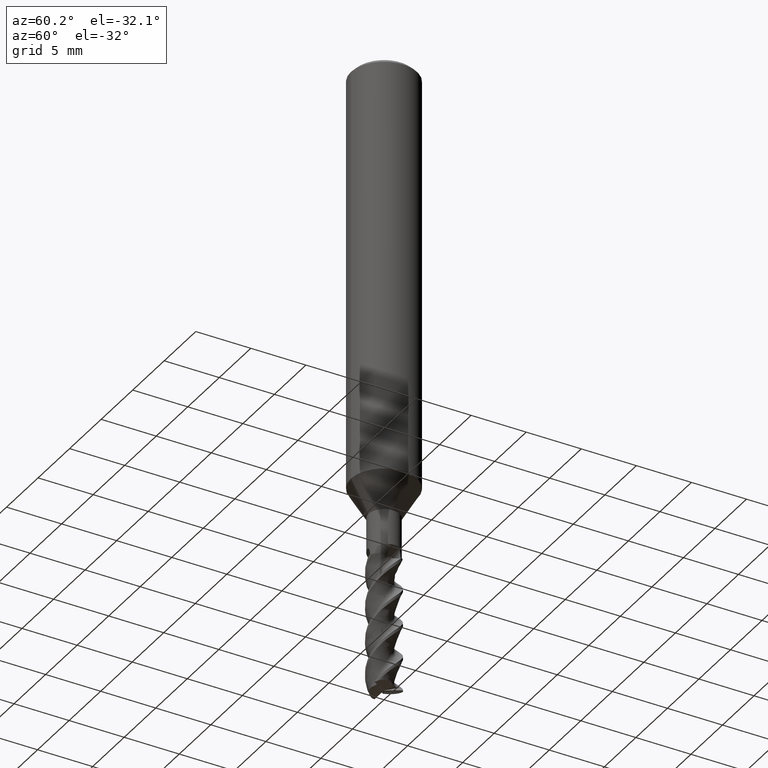
[diagram: clean part render]
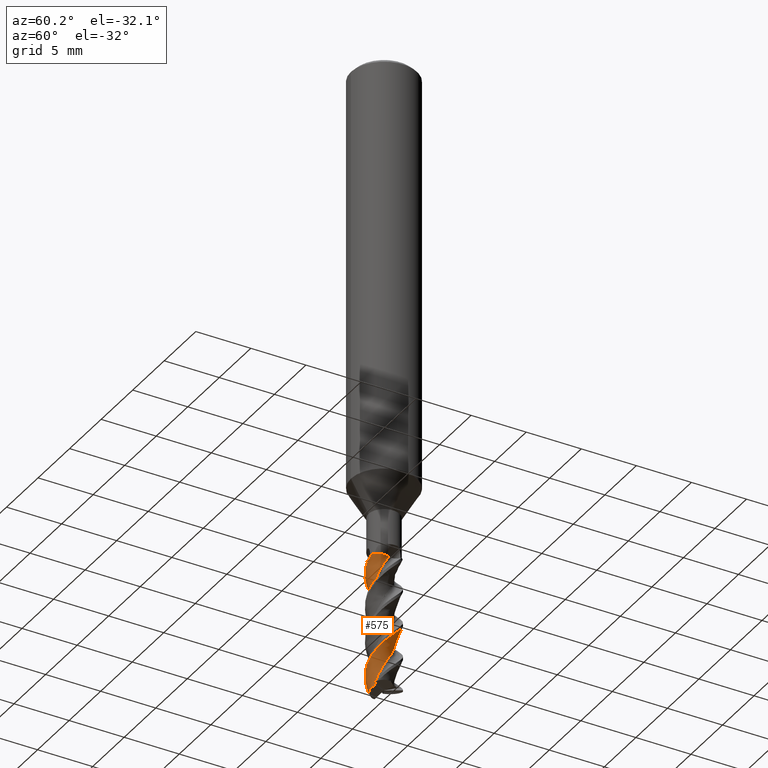
[diagram: same view with one face highlighted and labeled with its STEP entity id]
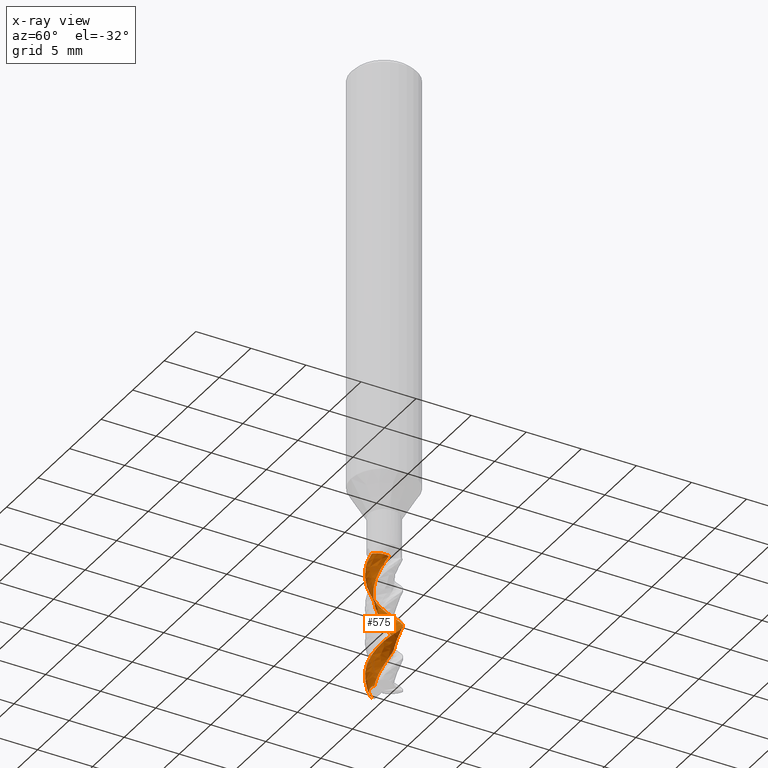
[diagram: x-ray of the same camera — body ghosted, the highlighted face saturated]
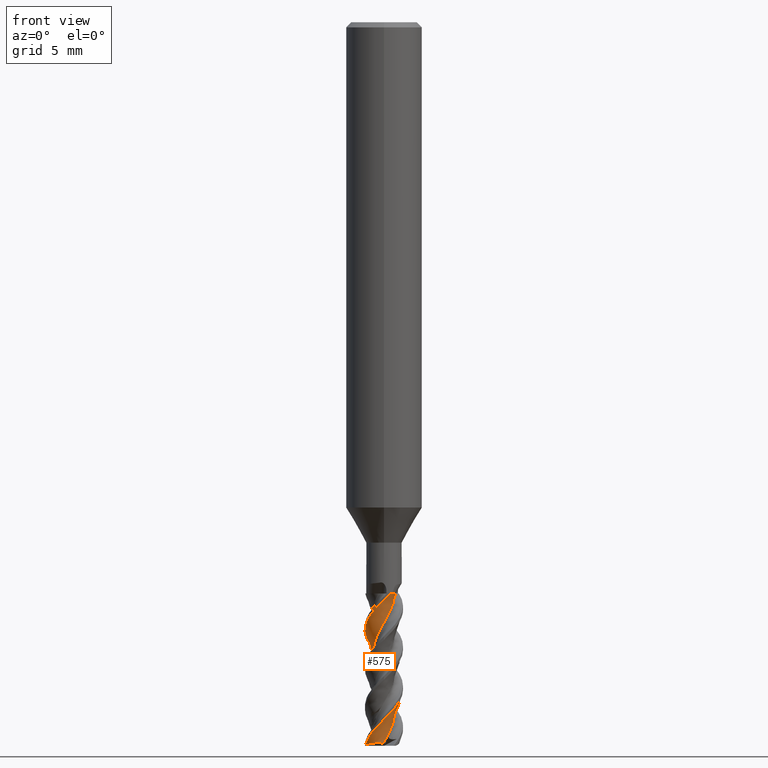
[diagram: same view with one face highlighted and labeled with its STEP entity id]
A machine part, auxiliary view. The second image highlights one B-rep face of the part: STEP entity #575.
The next image is the same camera in x-ray: the body ghosted, the highlighted face saturated — about 0% of this face is hidden behind the body in this view.
A second angle (front view) of the same face is appended — the face is thin or edge-on in the first view.
In plain terms, the highlighted face is a freeform B-spline surface patch.
Its self-contained STEP definition (entity closure, byte-faithful):
#465=EDGE_CURVE('',#909,#865,#1311,.T.);
#523=VERTEX_POINT('',#1371);
#555=EDGE_CURVE('',#523,#909,#1405,.T.);
#575=ADVANCED_FACE('',(#1428),#1429,.T.);
#857=EDGE_CURVE('',#1103,#931,#1743,.T.);
#865=VERTEX_POINT('',#1752);
#873=EDGE_CURVE('',#915,#1103,#1760,.T.);
#885=EDGE_CURVE('',#1005,#1131,#1772,.T.);
#909=VERTEX_POINT('',#1797);
#915=VERTEX_POINT('',#1803);
#931=VERTEX_POINT('',#1820);
#1005=VERTEX_POINT('',#1906);
#1007=EDGE_CURVE('',#1131,#915,#1908,.T.);
#1069=EDGE_CURVE('',#865,#1005,#1974,.T.);
#1103=VERTEX_POINT('',#2013);
#1107=EDGE_CURVE('',#931,#523,#2017,.T.);
#1131=VERTEX_POINT('',#2041);
#1311=B_SPLINE_CURVE_WITH_KNOTS('',3,(#2281,#2282,#2283,#2284,#2285,#2286,#2287,#2288,#2289,#2290),.UNSPECIFIED.,.F.,.F.,(4,2,2,2,4),(0.0,0.48447848214573,0.968928230784294,1.33648612621128,1.70403410038403),.UNSPECIFIED.);
#1371=CARTESIAN_POINT('',(1.01702827928173E-015,-1.49990416364098,-45.4996369174987));
#1405=B_SPLINE_CURVE_WITH_KNOTS('',3,(#2764,#2765,#2766,#2767,#2768,#2769,#2770,#2771,#2772,#2773,#2774,#2775,#2776,#2777,#2778,#2779,#2780,#2781,#2782,#2783,#2784,#2785,#2786,#2787,#2788,#2789,#2790,#2791,#2792,#2793,#2794,#2795,#2796,#2797,#2798,#2799,#2800,#2801,#2802,#2803,#2804,#2805,#2806,#2807,#2808,#2809,#2810,#2811,#2812,#2813,#2814,#2815,#2816,#2817),.UNSPECIFIED.,.F.,.F.,(4,2,2,2,2,2,2,2,2,2,2,2,2,2,2,2,2,2,2,2,2,2,2,2,2,2,4),(0.0,0.335786071669688,0.90022083376192,2.00729263478944,2.30663199296024,2.49481213804953,2.59872621261357,2.77703610799303,2.88371848948536,2.93616983695043,3.00777645414699,3.0401180903144,3.06614237603094,3.11100841933135,3.12916524271368,3.13912020771624,3.14875504487455,3.15529163063396,3.16835584755242,3.17427486532408,3.17751713657463,3.18079337399987,3.18691030537439,3.19009052128507,3.19225516217203,3.19604536988981,3.19929230834819),.UNSPECIFIED.);
#1428=FACE_OUTER_BOUND('',#3150,.T.);
#1429=B_SPLINE_SURFACE_WITH_KNOTS('',3,3,((#3151,#3152,#3153,#3154,#3155,#3156,#3157,#3158,#3159,#3160,#3161,#3162,#3163,#3164,#3165,#3166,#3167,#3168,#3169,#3170,#3171,#3172,#3173,#3174,#3175,#3176,#3177,#3178,#3179,#3180,#3181,#3182,#3183,#3184,#3185,#3186,#3187,#3188,#3189,#3190,#3191,#3192,#3193,#3194,#3195,#3196,#3197,#3198,#3199,#3200,#3201,#3202,#3203,#3204,#3205,#3206,#3207,#3208,#3209,#3210,#3211,#3212,#3213,#3214,#3215,#3216,#3217),(#3218,#3219,#3220,#3221,#3222,#3223,#3224,#3225,#3226,#3227,#3228,#3229,#3230,#3231,#3232,#3233,#3234,#3235,#3236,#3237,#3238,#3239,#3240,#3241,#3242,#3243,#3244,#3245,#3246,#3247,#3248,#3249,#3250,#3251,#3252,#3253,#3254,#3255,#3256,#3257,#3258,#3259,#3260,#3261,#3262,#3263,#3264,#3265,#3266,#3267,#3268,#3269,#3270,#3271,#3272,#3273,#3274,#3275,#3276,#3277,#3278,#3279,#3280,#3281,#3282,#3283,#3284),(#3285,#3286,#3287,#3288,#3289,#3290,#3291,#3292,#3293,#3294,#3295,#3296,#3297,#3298,#3299,#3300,#3301,#3302,#3303,#3304,#3305,#3306,#3307,#3308,#3309,#3310,#3311,#3312,#3313,#3314,#3315,#3316,#3317,#3318,#3319,#3320,#3321,#3322,#3323,#3324,#3325,#3326,#3327,#3328,#3329,#3330,#3331,#3332,#3333,#3334,#3335,#3336,#3337,#3338,#3339,#3340,#3341,#3342,#3343,#3344,#3345,#3346,#3347,#3348,#3349,#3350,#3351),(#3352,#3353,#3354,#3355,#3356,#3357,#3358,#3359,#3360,#3361,#3362,#3363,#3364,#3365,#3366,#3367,#3368,#3369,#3370,#3371,#3372,#3373,#3374,#3375,#3376,#3377,#3378,#3379,#3380,#3381,#3382,#3383,#3384,#3385,#3386,#3387,#3388,#3389,#3390,#3391,#3392,#3393,#3394,#3395,#3396,#3397,#3398,#3399,#3400,#3401,#3402,#3403,#3404,#3405,#3406,#3407,#3408,#3409,#3410,#3411,#3412,#3413,#3414,#3415,#3416,#3417,#3418),(#3419,#3420,#3421,#3422,#3423,#3424,#3425,#3426,#3427,#3428,#3429,#3430,#3431,#3432,#3433,#3434,#3435,#3436,#3437,#3438,#3439,#3440,#3441,#3442,#3443,#3444,#3445,#3446,#3447,#3448,#3449,#3450,#3451,#3452,#3453,#3454,#3455,#3456,#3457,#3458,#3459,#3460,#3461,#3462,#3463,#3464,#3465,#3466,#3467,#3468,#3469,#3470,#3471,#3472,#3473,#3474,#3475,#3476,#3477,#3478,#3479,#3480,#3481,#3482,#3483,#3484,#3485),(#3486,#3487,#3488,#3489,#3490,#3491,#3492,#3493,#3494,#3495,#3496,#3497,#3498,#3499,#3500,#3501,#3502,#3503,#3504,#3505,#3506,#3507,#3508,#3509,#3510,#3511,#3512,#3513,#3514,#3515,#3516,#3517,#3518,#3519,#3520,#3521,#3522,#3523,#3524,#3525,#3526,#3527,#3528,#3529,#3530,#3531,#3532,#3533,#3534,#3535,#3536,#3537,#3538,#3539,#3540,#3541,#3542,#3543,#3544,#3545,#3546,#3547,#3548,#3549,#3550,#3551,#3552)),.UNSPECIFIED.,.F.,.F.,.F.,(4,1,1,4),(4,1,2,1,2,1,2,1,1,2,2,2,2,2,2,2,2,2,2,2,2,2,2,2,2,2,2,2,2,2,2,2,1,1,2,2,4),(-1.37901021707789,-0.861881385673684,-0.344752554269474,0.0),(0.0,0.28264834390618,0.565296687812361,0.847945031718541,1.13059337562472,1.69589006343708,2.26118675124944,2.68515926710871,3.10913178296798,3.39178012687416,3.95707681468652,4.52237350249889,5.08767019031125,5.65296687812361,6.21826356593597,6.78356025374833,7.34885694156069,7.91415362937305,8.47945031718541,9.04474700499777,9.61004369281013,10.1753403806225,10.7406370684349,11.3059337562472,11.8712304440596,12.4365271318719,13.0018238196843,13.5671205074967,14.132417195309,14.6977138831214,15.2630105709337,15.8283072587461,16.1109556026523,16.5349281185115,16.9589006343708,17.5241973221832,18.0894940099955),.UNSPECIFIED.);
#1743=B_SPLINE_CURVE_WITH_KNOTS('',3,(#5737,#5738,#5739,#5740,#5741,#5742,#5743,#5744,#5745,#5746,#5747,#5748,#5749,#5750,#5751,#5752,#5753,#5754,#5755,#5756,#5757,#5758,#5759,#5760,#5761,#5762,#5763,#5764,#5765,#5766,#5767,#5768,#5769,#5770,#5771,#5772,#5773,#5774,#5775,#5776,#5777,#5778,#5779,#5780,#5781,#5782,#5783,#5784,#5785,#5786,#5787,#5788,#5789,#5790),.UNSPECIFIED.,.F.,.F.,(4,2,2,2,2,2,2,2,2,2,2,2,2,2,2,2,2,2,2,2,2,2,2,2,2,2,4),(0.0,0.335786071669688,0.90022083376192,2.00729263478944,2.30663199296024,2.49481213804953,2.59872621261357,2.77703610799303,2.88371848948536,2.93616983695043,3.00777645414699,3.0401180903144,3.06614237603094,3.11100841933135,3.12916524271368,3.13912020771624,3.14875504487455,3.15529163063396,3.16835584755242,3.17427486532408,3.17751713657463,3.18079337399987,3.18691030537439,3.19009052128507,3.19225516217203,3.19604536988981,3.19929230834819),.UNSPECIFIED.);
#1752=CARTESIAN_POINT('',(0.876327925445349,-0.121275977740521,-45.0));
#1760=B_SPLINE_CURVE_WITH_KNOTS('',3,(#5809,#5810,#5811,#5812,#5813,#5814,#5815,#5816,#5817,#5818,#5819,#5820,#5821,#5822,#5823,#5824,#5825,#5826,#5827,#5828,#5829,#5830,#5831,#5832,#5833,#5834,#5835,#5836,#5837,#5838,#5839,#5840,#5841,#5842,#5843,#5844,#5845,#5846,#5847,#5848,#5849,#5850,#5851,#5852,#5853,#5854,#5855,#5856,#5857,#5858,#5859,#5860,#5861,#5862),.UNSPECIFIED.,.F.,.F.,(4,2,2,2,2,2,2,2,2,2,2,2,2,2,2,2,2,2,2,2,2,2,2,2,2,2,4),(0.0,0.335786071669688,0.90022083376192,2.00729263478944,2.30663199296024,2.49481213804953,2.59872621261357,2.77703610799303,2.88371848948536,2.93616983695043,3.00777645414699,3.0401180903144,3.06614237603094,3.11100841933135,3.12916524271368,3.13912020771624,3.14875504487455,3.15529163063396,3.16835584755242,3.17427486532408,3.17751713657463,3.18079337399987,3.18691030537439,3.19009052128507,3.19225516217203,3.19604536988981,3.19929230834819),.UNSPECIFIED.);
#1772=B_SPLINE_CURVE_WITH_KNOTS('',3,(#5907,#5908,#5909,#5910,#5911,#5912,#5913,#5914,#5915,#5916,#5917,#5918,#5919,#5920,#5921,#5922,#5923,#5924,#5925,#5926,#5927,#5928,#5929,#5930,#5931,#5932,#5933,#5934,#5935,#5936,#5937,#5938,#5939,#5940,#5941,#5942,#5943,#5944,#5945,#5946,#5947,#5948,#5949,#5950,#5951,#5952,#5953,#5954,#5955,#5956,#5957,#5958,#5959,#5960,#5961,#5962,#5963,#5964),.UNSPECIFIED.,.F.,.F.,(4,2,2,2,2,2,2,2,2,2,2,2,2,2,2,2,2,2,2,2,2,2,2,2,2,2,2,2,4),(-254.021550951745,-246.46416756569,-236.895822079088,-211.637971657684,-177.961105259405,-154.169309113102,-132.985016083723,-116.871851732927,-102.351756280444,-94.3970025981933,-88.3324134140824,-75.1866241342562,-67.0084300719409,-60.5333456091331,-47.8388302619009,-39.4370547420788,-32.0069317094988,-27.3700578725343,-24.0140900473236,-17.5687177239578,-13.5823745245318,-10.0990570406017,-7.47173482627572,-5.10388346754107,-3.63410079716518,-2.73538793047097,-1.02532382262125,-0.235444407227589,-0.0),.UNSPECIFIED.);
#1797=CARTESIAN_POINT('',(0.49983610877769,-1.41416543387327,-45.0));
#1803=CARTESIAN_POINT('',(-1.46708090565711,-0.312526377047861,-56.9648037701929));
#1820=CARTESIAN_POINT('',(-1.23427788967903E-011,1.4999434295749,-50.2115489885799));
#1906=CARTESIAN_POINT('',(0.846759884324632,-0.0342718584790371,-45.0));
#1908=B_SPLINE_CURVE_WITH_KNOTS('',3,(#7018,#7019,#7020,#7021,#7022,#7023,#7024,#7025,#7026,#7027,#7028,#7029),.UNSPECIFIED.,.F.,.F.,(4,2,2,2,2,4),(0.0,0.444612777414842,0.858535342545433,1.29686315948062,1.58233976490177,1.8913125558796),.UNSPECIFIED.);
#1974=B_SPLINE_CURVE_WITH_KNOTS('',3,(#7531,#7532,#7533,#7534,#7535,#7536,#7537,#7538,#7539,#7540),.UNSPECIFIED.,.F.,.F.,(4,2,2,2,4),(0.0,0.48447848214573,0.968928230784294,1.33648612621128,1.70403410038403),.UNSPECIFIED.);
#2013=CARTESIAN_POINT('',(8.54746769994039E-015,-1.49998274306888,-54.9291682659035));
#2017=B_SPLINE_CURVE_WITH_KNOTS('',3,(#7943,#7944,#7945,#7946,#7947,#7948,#7949,#7950,#7951,#7952,#7953,#7954,#7955,#7956,#7957,#7958,#7959,#7960,#7961,#7962,#7963,#7964,#7965,#7966,#7967,#7968,#7969,#7970,#7971,#7972,#7973,#7974,#7975,#7976,#7977,#7978,#7979,#7980,#7981,#7982,#7983,#7984,#7985,#7986,#7987,#7988,#7989,#7990,#7991,#7992,#7993,#7994,#7995,#7996),.UNSPECIFIED.,.F.,.F.,(4,2,2,2,2,2,2,2,2,2,2,2,2,2,2,2,2,2,2,2,2,2,2,2,2,2,4),(0.0,0.335786071669688,0.90022083376192,2.00729263478944,2.30663199296024,2.49481213804953,2.59872621261357,2.77703610799303,2.88371848948536,2.93616983695043,3.00777645414699,3.0401180903144,3.06614237603094,3.11100841933135,3.12916524271368,3.13912020771624,3.14875504487455,3.15529163063396,3.16835584755242,3.17427486532408,3.17751713657463,3.18079337399987,3.18691030537439,3.19009052128507,3.19225516217203,3.19604536988981,3.19929230834819),.UNSPECIFIED.);
#2041=CARTESIAN_POINT('',(-0.0497259425015575,-0.846685207572741,-56.7912450452387));
#2281=CARTESIAN_POINT('',(0.363455061178541,-1.51670314906504,-45.0));
#2282=CARTESIAN_POINT('',(0.498904898749721,-1.42876410882838,-45.0));
#2283=CARTESIAN_POINT('',(0.615883533489528,-1.31521006054068,-45.0));
#2284=CARTESIAN_POINT('',(0.799722220317069,-1.04966022565664,-45.0));
#2285=CARTESIAN_POINT('',(0.864827292841243,-0.900205973428404,-45.0));
#2286=CARTESIAN_POINT('',(0.925729127818842,-0.622810545601164,-45.0));
#2287=CARTESIAN_POINT('',(0.934123599080515,-0.49990618940941,-45.0));
#2288=CARTESIAN_POINT('',(0.914608034124123,-0.255649551605449,-45.0));
#2289=CARTESIAN_POINT('',(0.886806301772203,-0.135640409150763,-45.0));
#2290=CARTESIAN_POINT('',(0.841868044679849,-0.0216636704360946,-45.0));
#2764=CARTESIAN_POINT('',(-1.47388320235739,-0.278690340357765,-57.0));
#2765=CARTESIAN_POINT('',(-1.45933759969545,-0.355612703186639,-56.9200037044));
#2766=CARTESIAN_POINT('',(-1.43864571716081,-0.432075817666508,-56.8403939944931));
#2767=CARTESIAN_POINT('',(-1.36613240406355,-0.633831502152941,-56.630249254887));
#2768=CARTESIAN_POINT('',(-1.30524711023481,-0.751513378897892,-56.5082523033066));
#2769=CARTESIAN_POINT('',(-1.07388282493938,-1.08062424333229,-56.1059592096592));
#2770=CARTESIAN_POINT('',(-0.863562737760793,-1.2564161725144,-55.8224756273239));
#2771=CARTESIAN_POINT('',(-0.547596947394778,-1.39840468089627,-55.489153627292));
#2772=CARTESIAN_POINT('',(-0.392693242375411,-1.46411084684019,-55.3332438767467));
#2773=CARTESIAN_POINT('',(-0.0388005515581466,-1.50577627648045,-54.969350320046));
#2774=CARTESIAN_POINT('',(0.099672046834071,-1.50303342554675,-54.8261598734087));
#2775=CARTESIAN_POINT('',(0.311506506386231,-1.46926090014125,-54.6090140523774));
#2776=CARTESIAN_POINT('',(0.386676506874135,-1.45138457318283,-54.5323507884903));
#2777=CARTESIAN_POINT('',(0.588491652521626,-1.38620515257656,-54.3272829026193));
#2778=CARTESIAN_POINT('',(0.765481091875554,-1.31014271234281,-54.1470386313718));
#2779=CARTESIAN_POINT('',(1.05017173083203,-1.07974712627353,-53.7709670162555));
#2780=CARTESIAN_POINT('',(1.14520427199714,-0.978653985266729,-53.6280367721694));
#2781=CARTESIAN_POINT('',(1.26483804838643,-0.809178864244627,-53.420488994409));
#2782=CARTESIAN_POINT('',(1.30083332264384,-0.750088014380632,-53.352717939042));
#2783=CARTESIAN_POINT('',(1.37669296704244,-0.603105467273346,-53.1946306899121));
#2784=CARTESIAN_POINT('',(1.48085766050853,-0.388275074782111,-52.9703685816626));
#2785=CARTESIAN_POINT('',(1.50529925447461,0.0556429881144482,-52.5123918776954));
#2786=CARTESIAN_POINT('',(1.49388510211046,0.196318127854828,-52.3691595753182));
#2787=CARTESIAN_POINT('',(1.4363257736043,0.447238429590197,-52.1187555824806));
#2788=CARTESIAN_POINT('',(1.39463449040906,0.572238499579667,-51.996698132203));
#2789=CARTESIAN_POINT('',(1.20223868155922,0.933606372703603,-51.5849101342404));
#2790=CARTESIAN_POINT('',(1.01653660357282,1.1396773801647,-51.2979928682603));
#2791=CARTESIAN_POINT('',(0.670642946752689,1.34668974385526,-50.9138806321404));
#2792=CARTESIAN_POINT('',(0.491436191013552,1.43922265497807,-50.7213177497914));
#2793=CARTESIAN_POINT('',(0.107899252770364,1.50237730538124,-50.3209396391205));
#2794=CARTESIAN_POINT('',(-0.032037085439585,1.50621378505256,-50.1777338120107));
#2795=CARTESIAN_POINT('',(-0.307641889128637,1.47438059564396,-49.9042592140843));
#2796=CARTESIAN_POINT('',(-0.437670953056364,1.44120520035265,-49.7810744173512));
#2797=CARTESIAN_POINT('',(-0.650921029339821,1.35453782641891,-49.5514734816023));
#2798=CARTESIAN_POINT('',(-0.732941096763396,1.3118625030943,-49.4572051247167));
#2799=CARTESIAN_POINT('',(-0.963901916863018,1.16367923881557,-49.1747364958323));
#2800=CARTESIAN_POINT('',(-1.10168423090993,1.0355055902128,-48.9831797584577));
#2801=CARTESIAN_POINT('',(-1.26413731604695,0.811896957309092,-48.717988216565));
#2802=CARTESIAN_POINT('',(-1.37391599875344,0.651774429063964,-48.5372027153257));
#2803=CARTESIAN_POINT('',(-1.48008755150491,0.279146377210996,-48.1391382011922));
#2804=CARTESIAN_POINT('',(-1.4996948425633,0.141691035473633,-47.9961695733573));
#2805=CARTESIAN_POINT('',(-1.50015112627906,-0.138234880000618,-47.7164506870924));
#2806=CARTESIAN_POINT('',(-1.48120121103055,-0.274641605735305,-47.590147220127));
#2807=CARTESIAN_POINT('',(-1.37158460030963,-0.660987987701527,-47.1940778767228));
#2808=CARTESIAN_POINT('',(-1.23614091032311,-0.88885314358267,-46.9187677007308));
#2809=CARTESIAN_POINT('',(-0.952192372217549,-1.16685242338302,-46.5272960043437));
#2810=CARTESIAN_POINT('',(-0.845011375524725,-1.24674382903905,-46.404549064316));
#2811=CARTESIAN_POINT('',(-0.643959580526948,-1.3578289603784,-46.1753921908863));
#2812=CARTESIAN_POINT('',(-0.559217172443495,-1.39476706228309,-46.0811233276065));
#2813=CARTESIAN_POINT('',(-0.320316259231211,-1.47403712663933,-45.8219897549655));
#2814=CARTESIAN_POINT('',(-0.158787780956962,-1.50057750650785,-45.6546092251286));
#2815=CARTESIAN_POINT('',(0.147587646422179,-1.49930324816048,-45.3555873593675));
#2816=CARTESIAN_POINT('',(0.317104004812098,-1.47875375568505,-45.1974806194435));
#2817=CARTESIAN_POINT('',(0.499836108777676,-1.41416543387328,-45.0));
#3150=EDGE_LOOP('',(#9591,#9592,#9593,#9594,#9595,#9596,#9597,#9598));
#3151=CARTESIAN_POINT('',(0.432390044791739,1.49887919755743,-60.0));
#3152=CARTESIAN_POINT('',(0.391554386532279,1.51077415959023,-59.9062472136295));
#3153=CARTESIAN_POINT('',(0.278377417776872,1.5406242232518,-59.7187664815209));
#3154=CARTESIAN_POINT('',(0.0889804492091277,1.56114486326382,-59.5312868911648));
#3155=CARTESIAN_POINT('',(-0.136538970710516,1.55743781223679,-59.3437667958251));
#3156=CARTESIAN_POINT('',(-0.348386032915086,1.53014613769416,-59.1562438658431));
#3157=CARTESIAN_POINT('',(-0.537139996047318,1.46739926307324,-58.9687393257113));
#3158=CARTESIAN_POINT('',(-0.808819456269221,1.34815515335216,-58.687502012446));
#3159=CARTESIAN_POINT('',(-1.11932736296906,1.13310167610297,-58.3125028811778));
#3160=CARTESIAN_POINT('',(-1.34441245693028,0.816866631241079,-57.937526250671));
#3161=CARTESIAN_POINT('',(-1.48992388381599,0.486056014064069,-57.6093926414607));
#3162=CARTESIAN_POINT('',(-1.56583284522938,0.202109784844903,-57.3281237222664));
#3163=CARTESIAN_POINT('',(-1.56394901033149,-0.175055731063493,-56.9531259903456));
#3164=CARTESIAN_POINT('',(-1.50634289050169,-0.416662890449161,-56.7187599188599));
#3165=CARTESIAN_POINT('',(-1.40465920243287,-0.708110230323213,-56.4375118269946));
#3166=CARTESIAN_POINT('',(-1.30535004100496,-0.874409523015917,-56.2500024396686));
#3167=CARTESIAN_POINT('',(-1.05780202645777,-1.16166915859917,-55.8750028036659));
#3168=CARTESIAN_POINT('',(-0.908199935614206,-1.28430114977779,-55.6875125580477));
#3169=CARTESIAN_POINT('',(-0.544630001047015,-1.47572284781513,-55.3125120842336));
#3170=CARTESIAN_POINT('',(-0.3590295189016,-1.52956715445729,-55.1250020259868));
#3171=CARTESIAN_POINT('',(0.0174113287676985,-1.57100336513567,-54.7500019829544));
#3172=CARTESIAN_POINT('',(0.210399056001442,-1.55886939415758,-54.5625119984433));
#3173=CARTESIAN_POINT('',(0.607284581277999,-1.45108540664263,-54.1875118329358));
#3174=CARTESIAN_POINT('',(0.779915832995304,-1.36389906450154,-54.0000017306805));
#3175=CARTESIAN_POINT('',(1.08369495990223,-1.13753122215123,-53.6250015646107));
#3176=CARTESIAN_POINT('',(1.21660650895488,-0.99708992872789,-53.437511500485));
#3177=CARTESIAN_POINT('',(1.4334665406282,-0.647765407783308,-53.0625114341023));
#3178=CARTESIAN_POINT('',(1.50034346417504,-0.466324022218446,-52.8750013983539));
#3179=CARTESIAN_POINT('',(1.5683117061368,-0.093641812677752,-52.5000013123698));
#3180=CARTESIAN_POINT('',(1.56983369134662,0.0997215526412399,-52.3125112622534));
#3181=CARTESIAN_POINT('',(1.49039351648191,0.503146048323225,-51.9375111409895));
#3182=CARTESIAN_POINT('',(1.41564897593334,0.681488667081535,-51.750001084363));
#3183=CARTESIAN_POINT('',(1.21134877709078,1.00050224646838,-51.3750009766956));
#3184=CARTESIAN_POINT('',(1.08066114113313,1.143020030389,-51.1875109256266));
#3185=CARTESIAN_POINT('',(0.747546000546864,1.38405359743003,-50.8125108156497));
#3186=CARTESIAN_POINT('',(0.571289954716672,1.46359736011923,-50.6250007621573));
#3187=CARTESIAN_POINT('',(0.204351824372303,1.55775842338597,-50.2500006554807));
#3188=CARTESIAN_POINT('',(0.0115826939490467,1.57295544931576,-50.0625106022868));
#3189=CARTESIAN_POINT('',(-0.39645092713475,1.52225346118427,-49.6875104855953));
#3190=CARTESIAN_POINT('',(-0.57963498592325,1.46031237360728,-49.5000004304955));
#3191=CARTESIAN_POINT('',(-0.912303139262151,1.27909076670858,-49.1250003232164));
#3192=CARTESIAN_POINT('',(-1.06370948104288,1.15881175966173,-48.9375102710224));
#3193=CARTESIAN_POINT('',(-1.32770433283243,0.843581335488442,-48.5625101562857));
#3194=CARTESIAN_POINT('',(-1.41951756097683,0.673393151996383,-48.3750001009082));
#3195=CARTESIAN_POINT('',(-1.53940022556306,0.314033027728508,-47.9999999882735));
#3196=CARTESIAN_POINT('',(-1.56819548789472,0.122820239890034,-47.8125099309894));
#3197=CARTESIAN_POINT('',(-1.54648323274176,-0.287780250643105,-47.4375098004873));
#3198=CARTESIAN_POINT('',(-1.49765516517208,-0.474886978292076,-47.2499997478034));
#3199=CARTESIAN_POINT('',(-1.34041545290999,-0.819546548312146,-46.8749996617791));
#3200=CARTESIAN_POINT('',(-1.23114343322199,-0.979087838526683,-46.6875096285459));
#3201=CARTESIAN_POINT('',(-0.935351807179786,-1.26473402585776,-46.3125095486271));
#3202=CARTESIAN_POINT('',(-0.772078861150734,-1.36834885287776,-46.1249994783833));
#3203=CARTESIAN_POINT('',(-0.422131544855036,-1.51333148946655,-45.7499993470376));
#3204=CARTESIAN_POINT('',(-0.233473971162113,-1.55556907514235,-45.5625092858211));
#3205=CARTESIAN_POINT('',(0.177531787817547,-1.56297376394732,-45.1875092476355));
#3206=CARTESIAN_POINT('',(0.367649611595537,-1.52752702712135,-44.9999992449165));
#3207=CARTESIAN_POINT('',(0.722689293403772,-1.39502889947104,-44.624999005683));
#3208=CARTESIAN_POINT('',(0.889650896942645,-1.29725603958564,-44.437508768544));
#3209=CARTESIAN_POINT('',(1.119098244292,-1.09102566568113,-44.1562581168483));
#3210=CARTESIAN_POINT('',(1.28610904235106,-0.907037972211747,-43.9218747727391));
#3211=CARTESIAN_POINT('',(1.4696223123141,-0.576952618586031,-43.5468706120809));
#3212=CARTESIAN_POINT('',(1.53972414515228,-0.291791492373636,-43.2656352862255));
#3213=CARTESIAN_POINT('',(1.57163686724908,0.0669551031954563,-42.9375128139711));
#3214=CARTESIAN_POINT('',(1.54954165465997,0.259486599567601,-42.7500020212529));
#3215=CARTESIAN_POINT('',(1.44261747244526,0.622255824498059,-42.3749988608726));
#3216=CARTESIAN_POINT('',(1.35726638127829,0.794507340455132,-42.1875064699942));
#3217=CARTESIAN_POINT('',(1.23281411052095,0.955120982379912,-42.0000061981756));
#3218=CARTESIAN_POINT('',(0.218928913087885,1.48718790339958,-60.0));
#3219=CARTESIAN_POINT('',(0.178448442724111,1.49259971519716,-59.906217831718));
#3220=CARTESIAN_POINT('',(0.0667010876857549,1.50551637737167,-59.7188318108223));
#3221=CARTESIAN_POINT('',(-0.11661412683295,1.50059266976162,-59.5314722320527));
#3222=CARTESIAN_POINT('',(-0.331439811925161,1.46828125931917,-59.3438579161368));
#3223=CARTESIAN_POINT('',(-0.530152490677349,1.41506201806947,-59.1562193592263));
#3224=CARTESIAN_POINT('',(-0.702165910095904,1.33082542355816,-58.9686876768721));
#3225=CARTESIAN_POINT('',(-0.946011899908315,1.18198079598512,-58.6875113416774));
#3226=CARTESIAN_POINT('',(-1.21432821760657,0.936519318621723,-58.3125164294946));
#3227=CARTESIAN_POINT('',(-1.38814841012829,0.605719957989048,-57.9376628899305));
#3228=CARTESIAN_POINT('',(-1.48451127836081,0.271303162271245,-57.6094870668528));
#3229=CARTESIAN_POINT('',(-1.52024620253517,-0.00945284360748777,-57.3281221403537));
#3230=CARTESIAN_POINT('',(-1.4695296132755,-0.36901244452535,-56.9531360549941));
#3231=CARTESIAN_POINT('',(-1.38339637923103,-0.592115906930463,-56.7188156564168));
#3232=CARTESIAN_POINT('',(-1.24888266572003,-0.857186800833334,-56.4375774331218));
#3233=CARTESIAN_POINT('',(-1.13259189433672,-1.00300298575192,-56.250020247761));
#3234=CARTESIAN_POINT('',(-0.859214864348733,-1.24500026882743,-55.8750231072091));
#3235=CARTESIAN_POINT('',(-0.700625491681447,-1.34262236203186,-55.6875831728739));
#3236=CARTESIAN_POINT('',(-0.329038616672268,-1.47855739350936,-55.3125809392622));
#3237=CARTESIAN_POINT('',(-0.144974230146249,-1.50589457127395,-55.1250196840758));
#3238=CARTESIAN_POINT('',(0.219532953116879,-1.496665029755,-54.750019958384));
#3239=CARTESIAN_POINT('',(0.40206546876532,-1.46010793230435,-54.5625814842339));
#3240=CARTESIAN_POINT('',(0.766976971175377,-1.30621530856065,-54.1875810013858));
#3241=CARTESIAN_POINT('',(0.920402307936927,-1.20066904918046,-54.0000194651008));
#3242=CARTESIAN_POINT('',(1.18089918557734,-0.945356546968056,-53.6250190105395));
#3243=CARTESIAN_POINT('',(1.28951209110613,-0.794175462488642,-53.4375800874764));
#3244=CARTESIAN_POINT('',(1.45155880062701,-0.432913505971598,-53.062580246117));
#3245=CARTESIAN_POINT('',(1.49187120429023,-0.251129567549479,-52.8750191203828));
#3246=CARTESIAN_POINT('',(1.50844256740749,0.113228675997308,-52.5000191497953));
#3247=CARTESIAN_POINT('',(1.48486405306157,0.297887365454441,-52.3125803040209));
#3248=CARTESIAN_POINT('',(1.35717979538082,0.672683059904718,-51.9375801135191));
#3249=CARTESIAN_POINT('',(1.26276503748336,0.833168983565239,-51.7500188641194));
#3250=CARTESIAN_POINT('',(1.0265325532254,1.11105839490924,-51.375018756452));
#3251=CARTESIAN_POINT('',(0.883412655661888,1.23009796924866,-51.1875799118994));
#3252=CARTESIAN_POINT('',(0.534512114442807,1.417299060161,-50.8125797903827));
#3253=CARTESIAN_POINT('',(0.356035296623542,1.47036912070225,-50.625018558071));
#3254=CARTESIAN_POINT('',(-0.00623558560372617,1.51267352896714,-50.250018462934));
#3255=CARTESIAN_POINT('',(-0.192097589628878,1.50221740111663,-50.0625795953898));
#3256=CARTESIAN_POINT('',(-0.574987023980279,1.40136691822981,-49.6875794440794));
#3257=CARTESIAN_POINT('',(-0.741750592548165,1.31854159901651,-49.5000181951091));
#3258=CARTESIAN_POINT('',(-1.03565639955105,1.10255840089923,-49.1250180993697));
#3259=CARTESIAN_POINT('',(-1.16452271911967,0.968217357240361,-48.9375792410409));
#3260=CARTESIAN_POINT('',(-1.37593652698014,0.6334329219492,-48.5625790916852));
#3261=CARTESIAN_POINT('',(-1.44149937628377,0.459156759517964,-48.3750178470578));
#3262=CARTESIAN_POINT('',(-1.50932484902097,0.100783914677556,-48.0000177113438));
#3263=CARTESIAN_POINT('',(-1.51204241949645,-0.0853536580692496,-47.8125788280837));
#3264=CARTESIAN_POINT('',(-1.43852836104571,-0.474420143566609,-47.4375785821849));
#3265=CARTESIAN_POINT('',(-1.36770682120969,-0.646624781406909,-47.250017357074));
#3266=CARTESIAN_POINT('',(-1.17305015820687,-0.95507729784015,-46.8750173979861));
#3267=CARTESIAN_POINT('',(-1.04815639587907,-1.09312895556939,-46.6875786475878));
#3268=CARTESIAN_POINT('',(-0.729139788656398,-1.32770545144602,-46.3125787061448));
#3269=CARTESIAN_POINT('',(-0.559933372848342,-1.40542446276136,-46.1250173500202));
#3270=CARTESIAN_POINT('',(-0.207289526992363,-1.49841513812634,-45.7500170917383));
#3271=CARTESIAN_POINT('',(-0.0218494756242509,-1.51428647052166,-45.5625781864555));
#3272=CARTESIAN_POINT('',(0.371347161607124,-1.46850712295263,-45.1875785636976));
#3273=CARTESIAN_POINT('',(0.548157907546511,-1.41006382933181,-45.0000176994938));
#3274=CARTESIAN_POINT('',(0.86971926758163,-1.23766843613817,-44.6250168371188));
#3275=CARTESIAN_POINT('',(1.01633918246353,-1.1227847482496,-44.4375768317951));
#3276=CARTESIAN_POINT('',(1.20879791115326,-0.896467326271796,-44.1563230903563));
#3277=CARTESIAN_POINT('',(1.34443141553231,-0.699349831405734,-43.9218971839789));
#3278=CARTESIAN_POINT('',(1.47669495042514,-0.360646281417152,-43.5468720264255));
#3279=CARTESIAN_POINT('',(1.50672974802742,-0.0795242046950533,-43.2657125238949));
#3280=CARTESIAN_POINT('',(1.49106721145951,0.266951805442006,-42.9376043694696));
#3281=CARTESIAN_POINT('',(1.44505767298154,0.447798630167043,-42.7500395449639));
#3282=CARTESIAN_POINT('',(1.29605369553108,0.780042601305024,-42.375014690029));
#3283=CARTESIAN_POINT('',(1.19232183985974,0.93330759475437,-42.1875545813036));
#3284=CARTESIAN_POINT('',(1.05288170214414,1.07056217310691,-42.0000379231724));
#3285=CARTESIAN_POINT('',(-0.201528385662513,1.35094960215581,-60.0));
#3286=CARTESIAN_POINT('',(-0.237870875058949,1.34359151920845,-59.9061650619035));
#3287=CARTESIAN_POINT('',(-0.337807071820314,1.32341976999074,-59.7189491423219));
#3288=CARTESIAN_POINT('',(-0.495512727511376,1.27085688052842,-59.5318051030254));
#3289=CARTESIAN_POINT('',(-0.673840061607277,1.18702920023469,-59.3440215684994));
#3290=CARTESIAN_POINT('',(-0.832591739566008,1.08893424312178,-59.1561753450263));
#3291=CARTESIAN_POINT('',(-0.959783212400682,0.97059853669049,-58.9685949159396));
#3292=CARTESIAN_POINT('',(-1.13234737873501,0.777309544340175,-58.6875280965452));
#3293=CARTESIAN_POINT('',(-1.30025771658572,0.493381902852246,-58.3125407648196));
#3294=CARTESIAN_POINT('',(-1.36391491195501,0.160580385182956,-57.9379082887632));
#3295=CARTESIAN_POINT('',(-1.36013900407046,-0.155055835064412,-57.6096566581145));
#3296=CARTESIAN_POINT('',(-1.31726600760249,-0.408192906588959,-57.3281192972927));
#3297=CARTESIAN_POINT('',(-1.17825807546348,-0.706742868388417,-56.9531541324266));
#3298=CARTESIAN_POINT('',(-1.04489257439223,-0.87777927465849,-56.7189157599171));
#3299=CARTESIAN_POINT('',(-0.858709325319622,-1.07277279994949,-56.4376952634007));
#3300=CARTESIAN_POINT('',(-0.719308648441228,-1.16867061562111,-56.2500522301661));
#3301=CARTESIAN_POINT('',(-0.418241067442737,-1.30654566528481,-55.875059573167));
#3302=CARTESIAN_POINT('',(-0.254913452616881,-1.34942893991577,-55.6877099920352));
#3303=CARTESIAN_POINT('',(0.103357154023331,-1.37022510021962,-55.3127046074611));
#3304=CARTESIAN_POINT('',(0.27033528507909,-1.3453954041164,-55.1250514016497));
#3305=CARTESIAN_POINT('',(0.584200578839861,-1.2412116579145,-54.7500522384794));
#3306=CARTESIAN_POINT('',(0.732922387867918,-1.16136904886258,-54.562706285532));
#3307=CARTESIAN_POINT('',(1.00954750854999,-0.932227093290707,-54.1877052226159));
#3308=CARTESIAN_POINT('',(1.11487835322316,-0.800140802329996,-54.0000513162615));
#3309=CARTESIAN_POINT('',(1.27356313656223,-0.509863575342326,-53.6250503431586));
#3310=CARTESIAN_POINT('',(1.32793211558425,-0.350065465743657,-53.4377032710789));
#3311=CARTESIAN_POINT('',(1.37411272402822,0.00607205584832232,-53.062703830649));
#3312=CARTESIAN_POINT('',(1.36115018261298,0.174494198156064,-52.8750509504169));
#3313=CARTESIAN_POINT('',(1.27939735964278,0.495038570272114,-52.5000511844175));
#3314=CARTESIAN_POINT('',(1.21025386493252,0.649027132222821,-52.3127042989716));
#3315=CARTESIAN_POINT('',(1.00128336839549,0.94109329600314,-51.9377039917552));
#3316=CARTESIAN_POINT('',(0.876996287543926,1.05548854022875,-51.7500507883838));
#3317=CARTESIAN_POINT('',(0.598686678121551,1.23429939304684,-51.3750506969404));
#3318=CARTESIAN_POINT('',(0.443133233319856,1.29983990167052,-51.1877038024993));
#3319=CARTESIAN_POINT('',(0.0911476592289293,1.37110060794365,-50.8127036772482));
#3320=CARTESIAN_POINT('',(-0.0777693314719095,1.37008409654676,-50.6250505231156));
#3321=CARTESIAN_POINT('',(-0.40329181644359,1.31121182456778,-50.2500504414068));
#3322=CARTESIAN_POINT('',(-0.561784183477387,1.25313565692652,-50.0627035187844));
#3323=CARTESIAN_POINT('',(-0.867901706292051,1.06535008385438,-49.687703281243));
#3324=CARTESIAN_POINT('',(-0.990803168838713,0.949466610152846,-49.5000501053403));
#3325=CARTESIAN_POINT('',(-1.18885488804656,0.684502564550291,-49.1250500202366));
#3326=CARTESIAN_POINT('',(-1.26523550459982,0.533974506112957,-48.9377031061555));
#3327=CARTESIAN_POINT('',(-1.36121740858574,0.187911095977005,-48.5627029042177));
#3328=CARTESIAN_POINT('',(-1.37215272238655,0.0193447365642246,-48.3750497155179));
#3329=CARTESIAN_POINT('',(-1.3364548607945,-0.309528731705253,-48.0000495454766));
#3330=CARTESIAN_POINT('',(-1.28973522604914,-0.471733582966525,-47.8127025552647));
#3331=CARTESIAN_POINT('',(-1.12407270296177,-0.790369514135211,-47.437702125621));
#3332=CARTESIAN_POINT('',(-1.0171731201799,-0.921160309008745,-47.250048996769));
#3333=CARTESIAN_POINT('',(-0.76687725544149,-1.13746186274699,-46.8750492386532));
#3334=CARTESIAN_POINT('',(-0.622123723322035,-1.22430248650853,-46.6877026163677));
#3335=CARTESIAN_POINT('',(-0.283691913419961,-1.3445266921307,-46.3127029019834));
#3336=CARTESIAN_POINT('',(-0.116319283260505,-1.36735098196309,-46.1250494485449));
#3337=CARTESIAN_POINT('',(0.214222408512449,-1.35500083472845,-45.7500489600327));
#3338=CARTESIAN_POINT('',(0.379290077738055,-1.31987592531815,-45.5627019230501));
#3339=CARTESIAN_POINT('',(0.708770117301075,-1.1772158894993,-45.187703063799));
#3340=CARTESIAN_POINT('',(0.846824525139757,-1.07984631659694,-45.0000508466293));
#3341=CARTESIAN_POINT('',(1.08037726423855,-0.845411525610308,-44.6250488595309));
#3342=CARTESIAN_POINT('',(1.17729312669514,-0.707084871521152,-44.4376990708988));
#3343=CARTESIAN_POINT('',(1.28520228547136,-0.460178347304693,-44.1564397836728));
#3344=CARTESIAN_POINT('',(1.35118019520102,-0.253409941366223,-43.9219374217813));
#3345=CARTESIAN_POINT('',(1.37645518971481,0.075419403955856,-43.5468745563132));
#3346=CARTESIAN_POINT('',(1.32854474140428,0.327282614230369,-43.2658512449383));
#3347=CARTESIAN_POINT('',(1.22428303737791,0.624077492401907,-42.9377687995531));
#3348=CARTESIAN_POINT('',(1.13665502871167,0.768925352827785,-42.7501068965904));
#3349=CARTESIAN_POINT('',(0.919687999395415,1.01790887501485,-42.3750431599351));
#3350=CARTESIAN_POINT('',(0.789258428517752,1.12350685427036,-42.1876409464794));
#3351=CARTESIAN_POINT('',(0.632213929596987,1.20614918093833,-42.0000949011668));
#3352=CARTESIAN_POINT('',(-0.598947594255984,0.915838558297414,-60.0));
#3353=CARTESIAN_POINT('',(-0.622074870249841,0.896410430849839,-59.9061289949426));
#3354=CARTESIAN_POINT('',(-0.686506630089564,0.84568181060631,-59.7190293355912));
#3355=CARTESIAN_POINT('',(-0.783123482903378,0.754797747150105,-59.5320326129187));
#3356=CARTESIAN_POINT('',(-0.885186964949727,0.635335679199147,-59.3441334208944));
#3357=CARTESIAN_POINT('',(-0.968040621522924,0.511584847457116,-59.156145262426));
#3358=CARTESIAN_POINT('',(-1.02080657702029,0.383286811706902,-58.9685315160204));
#3359=CARTESIAN_POINT('',(-1.08146088385406,0.185493343949638,-58.6875395480198));
#3360=CARTESIAN_POINT('',(-1.10765248786492,-0.0768077462281944,-58.3125573959108));
#3361=CARTESIAN_POINT('',(-1.04232667698258,-0.33929299454014,-57.938076016407));
#3362=CARTESIAN_POINT('',(-0.934887617267739,-0.567138203783571,-57.6097725674604));
#3363=CARTESIAN_POINT('',(-0.819130229820871,-0.736438379776689,-57.3281173554001));
#3364=CARTESIAN_POINT('',(-0.618032539835252,-0.906071721704637,-56.9531664869136));
#3365=CARTESIAN_POINT('',(-0.464262407166526,-0.985627164768522,-56.7189841791636));
#3366=CARTESIAN_POINT('',(-0.264407584225469,-1.06534267286544,-56.4377757960806));
#3367=CARTESIAN_POINT('',(-0.131139852644413,-1.08815473674976,-56.2500740901287));
#3368=CARTESIAN_POINT('',(0.133363492297493,-1.08710940263208,-55.8750844960864));
#3369=CARTESIAN_POINT('',(0.266089726900666,-1.0634341826488,-55.687796672159));
#3370=CARTESIAN_POINT('',(0.533011296992246,-0.959581344857359,-55.3127891296941));
#3371=CARTESIAN_POINT('',(0.645792434989748,-0.885563774901057,-55.12507307945));
#3372=CARTESIAN_POINT('',(0.838362613983412,-0.704732958325004,-54.7500743016198));
#3373=CARTESIAN_POINT('',(0.919362227763622,-0.597022012208119,-54.562791584343));
#3374=CARTESIAN_POINT('',(1.04406026524785,-0.338889150136516,-54.1877901249803));
#3375=CARTESIAN_POINT('',(1.07615730167877,-0.207758206407755,-54.0000730862879));
#3376=CARTESIAN_POINT('',(1.093802546354,0.0559076880039681,-53.625071757796));
#3377=CARTESIAN_POINT('',(1.07962904699061,0.189925672070762,-53.4377874641512));
#3378=CARTESIAN_POINT('',(0.994916573149113,0.46372779569125,-53.0627882979221));
#3379=CARTESIAN_POINT('',(0.92902632068291,0.581538436553959,-52.875072705637));
#3380=CARTESIAN_POINT('',(0.762219025713483,0.786478354895679,-52.5000730792214));
#3381=CARTESIAN_POINT('',(0.660494862720851,0.874881215184781,-52.3127890497143));
#3382=CARTESIAN_POINT('',(0.411873627278207,1.01747941041016,-51.93778865664));
#3383=CARTESIAN_POINT('',(0.28335903415913,1.05876580525456,-51.750072612473));
#3384=CARTESIAN_POINT('',(0.021616141120447,1.09501529360484,-51.3750725229475));
#3385=CARTESIAN_POINT('',(-0.113071093229331,1.09036006554025,-51.1877884823009));
#3386=CARTESIAN_POINT('',(-0.392185865337896,1.02522864674021,-50.8127883476549));
#3387=CARTESIAN_POINT('',(-0.514362131285343,0.96783701902561,-50.6250723686663));
#3388=CARTESIAN_POINT('',(-0.730587208028906,0.815945993814614,-50.250072299781));
#3389=CARTESIAN_POINT('',(-0.825963646309789,0.720731447610308,-50.0627882087242));
#3390=CARTESIAN_POINT('',(-0.985792614146851,0.482820754993289,-49.6877879299508));
#3391=CARTESIAN_POINT('',(-1.03606722167409,0.357548428908014,-49.5000719168671));
#3392=CARTESIAN_POINT('',(-1.0907422618518,0.0990246281798054,-49.1250718357973));
#3393=CARTESIAN_POINT('',(-1.09562661020653,-0.0356551104243211,-48.9377877676174));
#3394=CARTESIAN_POINT('',(-1.05040293225289,-0.31867857164174,-48.5627875247318));
#3395=CARTESIAN_POINT('',(-1.00179769461953,-0.444609133780406,-48.375071499308));
#3396=CARTESIAN_POINT('',(-0.865581968269584,-0.671038473890303,-48.0000713009453));
#3397=CARTESIAN_POINT('',(-0.777351977689905,-0.772912119975193,-47.8127871222942));
#3398=CARTESIAN_POINT('',(-0.551341589578836,-0.949170742728323,-47.437786562378));
#3399=CARTESIAN_POINT('',(-0.429939268341242,-1.00818067758097,-47.2500706191977));
#3400=CARTESIAN_POINT('',(-0.175925911023996,-1.08100671665797,-46.875071003593));
#3401=CARTESIAN_POINT('',(-0.0419240529462566,-1.09540657728046,-46.6877873429527));
#3402=CARTESIAN_POINT('',(0.243608358877333,-1.0703116493937,-46.3127877902115));
#3403=CARTESIAN_POINT('',(0.372660758433492,-1.03073009013747,-46.1250713858862));
#3404=CARTESIAN_POINT('',(0.608132253904834,-0.91087846737578,-45.7500707425392));
#3405=CARTESIAN_POINT('',(0.715966675734612,-0.830088984710859,-45.562786496842));
#3406=CARTESIAN_POINT('',(0.907729681285601,-0.617170241273022,-45.1877881540845));
#3407=CARTESIAN_POINT('',(0.975204893005106,-0.500245002853554,-45.0000735046639));
#3408=CARTESIAN_POINT('',(1.06586248066915,-0.251944547175533,-44.6250707433878));
#3409=CARTESIAN_POINT('',(1.08972135613411,-0.119223531239195,-44.4377826227456));
#3410=CARTESIAN_POINT('',(1.08607436698792,0.0957945516876133,-44.1565195387608));
#3411=CARTESIAN_POINT('',(1.06496823008688,0.267819154784212,-43.921964929458));
#3412=CARTESIAN_POINT('',(0.972769733432568,0.514662277631373,-43.5468762914101));
#3413=CARTESIAN_POINT('',(0.853824089143992,0.681225144639335,-43.2659460569135));
#3414=CARTESIAN_POINT('',(0.679646384773917,0.862028513581173,-42.9378811846159));
#3415=CARTESIAN_POINT('',(0.567524770440643,0.937717455594435,-42.7501529480072));
#3416=CARTESIAN_POINT('',(0.326696700984221,1.04540246859443,-42.3750626003435));
#3417=CARTESIAN_POINT('',(0.196757863311548,1.07815805436492,-42.1876999990403));
#3418=CARTESIAN_POINT('',(0.055321359616252,1.08590522462172,-42.0001338443101));
#3419=CARTESIAN_POINT('',(-0.70891829233399,0.571238398450621,-60.0));
#3420=CARTESIAN_POINT('',(-0.721579456362448,0.548470453871678,-59.9061291230067));
#3421=CARTESIAN_POINT('',(-0.758372638811399,0.489812248912264,-59.7190290508684));
#3422=CARTESIAN_POINT('',(-0.811092267892094,0.393233437379983,-59.5320318053199));
#3423=CARTESIAN_POINT('',(-0.861485765448105,0.273468522884348,-59.3441330237712));
#3424=CARTESIAN_POINT('',(-0.895433762444898,0.154885269299845,-59.1561453692971));
#3425=CARTESIAN_POINT('',(-0.904141857837322,0.0401281299653025,-58.9685317409808));
#3426=CARTESIAN_POINT('',(-0.901236368532248,-0.13146320771099,-58.687539507581));
#3427=CARTESIAN_POINT('',(-0.853950657401562,-0.345342391829065,-58.3125573368552));
#3428=CARTESIAN_POINT('',(-0.734742179740638,-0.535522800631309,-57.9380754207978));
#3429=CARTESIAN_POINT('',(-0.592023184259409,-0.687815301599445,-57.6097721561232));
#3430=CARTESIAN_POINT('',(-0.457134404377871,-0.791664936883832,-57.3281173619005));
#3431=CARTESIAN_POINT('',(-0.254491307945506,-0.8734797611847,-56.9531664436667));
#3432=CARTESIAN_POINT('',(-0.112815261906537,-0.896787458362728,-56.7189839356691));
#3433=CARTESIAN_POINT('',(0.0650850603414381,-0.908712890949653,-56.4377755114102));
#3434=CARTESIAN_POINT('',(0.176180471004967,-0.892343914441419,-56.2500740134076));
#3435=CARTESIAN_POINT('',(0.384650255244847,-0.823214426398668,-55.8750844067317));
#3436=CARTESIAN_POINT('',(0.483234677625131,-0.770276085717862,-55.6877963660839));
#3437=CARTESIAN_POINT('',(0.667234935899311,-0.620353948099124,-55.3127888280105));
#3438=CARTESIAN_POINT('',(0.737173650072614,-0.532813781264604,-55.1250729996805));
#3439=CARTESIAN_POINT('',(0.84244013998092,-0.340364463035307,-54.7500742261078));
#3440=CARTESIAN_POINT('',(0.878525508961818,-0.234489587195544,-54.5627912805373));
#3441=CARTESIAN_POINT('',(0.911066288324169,0.000827801946997664,-54.1877898245769));
#3442=CARTESIAN_POINT('',(0.90257124812922,0.112635605862613,-54.0000730080387));
#3443=CARTESIAN_POINT('',(0.848396914393755,0.325274221875614,-53.6250716827412));
#3444=CARTESIAN_POINT('',(0.802616927716393,0.427329804067166,-53.4377871629898));
#3445=CARTESIAN_POINT('',(0.666040552226628,0.62163475635179,-53.0627880003468));
#3446=CARTESIAN_POINT('',(0.583622296113908,0.697642771354903,-52.8750726277505));
#3447=CARTESIAN_POINT('',(0.399048185257861,0.816295091446118,-52.5000730021534));
#3448=CARTESIAN_POINT('',(0.295984184313405,0.85976597846031,-52.3127887474745));
#3449=CARTESIAN_POINT('',(0.0636032399651447,0.908843078425177,-51.9377883574604));
#3450=CARTESIAN_POINT('',(-0.0485103828999374,0.908277252265298,-51.7500725342042));
#3451=CARTESIAN_POINT('',(-0.264436676113066,0.869281291746025,-51.3750724462587));
#3452=CARTESIAN_POINT('',(-0.369477450459158,0.830836856462894,-51.1877881821679));
#3453=CARTESIAN_POINT('',(-0.572961823151115,0.708346684239346,-50.8127880466047));
#3454=CARTESIAN_POINT('',(-0.654609375434879,0.631511515406908,-50.6250722913113));
#3455=CARTESIAN_POINT('',(-0.78602035402795,0.455794302315108,-50.2500722219897));
#3456=CARTESIAN_POINT('',(-0.836672611492256,0.356064716152213,-50.062787911413));
#3457=CARTESIAN_POINT('',(-0.902065884264494,0.127737735185713,-49.6877876261204));
#3458=CARTESIAN_POINT('',(-0.909432744035613,0.0158646029920557,-49.5000718390544));
#3459=CARTESIAN_POINT('',(-0.885809430534143,-0.202280206799627,-49.1250717587339));
#3460=CARTESIAN_POINT('',(-0.854891867737784,-0.309777906599541,-48.9377874704293));
#3461=CARTESIAN_POINT('',(-0.747102905776083,-0.521417881935886,-48.5627872209788));
#3462=CARTESIAN_POINT('',(-0.676235747294606,-0.608296562114829,-48.3750714210628));
#3463=CARTESIAN_POINT('',(-0.510253700952998,-0.751809250602202,-48.0000712246269));
#3464=CARTESIAN_POINT('',(-0.41435622782593,-0.809389790177417,-47.8127868251371));
#3465=CARTESIAN_POINT('',(-0.19122551460632,-0.8907707736005,-47.4377862595799));
#3466=CARTESIAN_POINT('',(-0.0801536758698171,-0.906032583898416,-47.2500705350377));
#3467=CARTESIAN_POINT('',(0.139119565385741,-0.897898875679378,-46.8750709337225));
#3468=CARTESIAN_POINT('',(0.248539076694185,-0.874662444104702,-46.6877870440989));
#3469=CARTESIAN_POINT('',(0.467287193173714,-0.782106532320739,-46.3127874869391));
#3470=CARTESIAN_POINT('',(0.55895901017432,-0.71755798816166,-46.1250713085791));
#3471=CARTESIAN_POINT('',(0.713833899746228,-0.562153781157701,-45.7500706646432));
#3472=CARTESIAN_POINT('',(0.778036829020682,-0.47058543295417,-45.5627861948581));
#3473=CARTESIAN_POINT('',(0.874977959259824,-0.253824065910088,-45.1877878537659));
#3474=CARTESIAN_POINT('',(0.898078642787159,-0.144103333842226,-45.0000734191495));
#3475=CARTESIAN_POINT('',(0.905496279638319,0.0752648165983729,-44.6250706707758));
#3476=CARTESIAN_POINT('',(0.890054866073032,0.186114945942106,-44.4377823251058));
#3477=CARTESIAN_POINT('',(0.832383053513646,0.354727963585229,-44.1565192561491));
#3478=CARTESIAN_POINT('',(0.771631042986637,0.485034341685709,-43.9219648329753));
#3479=CARTESIAN_POINT('',(0.634962192064411,0.656018212581184,-43.546876283425));
#3480=CARTESIAN_POINT('',(0.498291805349026,0.756788983522166,-43.2659457181623));
#3481=CARTESIAN_POINT('',(0.314888221787561,0.854973168464273,-42.9378807885614));
#3482=CARTESIAN_POINT('',(0.206853166775977,0.885812580405322,-42.7501527809445));
#3483=CARTESIAN_POINT('',(-0.0110259624939417,0.908583349466497,-42.3750625349164));
#3484=CARTESIAN_POINT('',(-0.122001181373385,0.900845919819874,-42.1876997965912));
#3485=CARTESIAN_POINT('',(-0.235517559724996,0.870834195427739,-42.0001337060623));
#3486=CARTESIAN_POINT('',(-0.728406700276298,0.430056411075634,-60.0));
#3487=CARTESIAN_POINT('',(-0.73677993170151,0.406696641429621,-59.9061327576681));
#3488=CARTESIAN_POINT('',(-0.762309610524073,0.346821109554169,-59.7190209693466));
#3489=CARTESIAN_POINT('',(-0.797604460971963,0.250987316903413,-59.532008877794));
#3490=CARTESIAN_POINT('',(-0.827918755328256,0.134583980791368,-59.3441217517794));
#3491=CARTESIAN_POINT('',(-0.843229038276638,0.0212998481679176,-59.1561484008634));
#3492=CARTESIAN_POINT('',(-0.835745198268284,-0.0852339880311198,-58.9685381301997));
#3493=CARTESIAN_POINT('',(-0.809929455130178,-0.242373660609543,-58.6875383534706));
#3494=CARTESIAN_POINT('',(-0.73737955991347,-0.432507453871522,-58.3125556608548));
#3495=CARTESIAN_POINT('',(-0.602121872281032,-0.590990272128272,-57.9380585179605));
#3496=CARTESIAN_POINT('',(-0.450794119086134,-0.711576917005895,-57.609760475221));
#3497=CARTESIAN_POINT('',(-0.312885388873575,-0.788729802194646,-57.3281175577362));
#3498=CARTESIAN_POINT('',(-0.11555552435549,-0.836348544953212,-56.9531651982541));
#3499=CARTESIAN_POINT('',(0.0176380901213188,-0.83863465029887,-56.7189770410024));
#3500=CARTESIAN_POINT('',(0.182450878549454,-0.825721585751287,-56.4377673949824));
#3501=CARTESIAN_POINT('',(0.282300555494318,-0.795635088424518,-56.2500718099773));
#3502=CARTESIAN_POINT('',(0.464433173308467,-0.703847617434173,-55.8750818955772));
#3503=CARTESIAN_POINT('',(0.547793001307042,-0.641847947920278,-55.6877876299263));
#3504=CARTESIAN_POINT('',(0.696500348323903,-0.479624673480851,-55.3127803111064));
#3505=CARTESIAN_POINT('',(0.748896674454755,-0.389719651715332,-55.1250708168227));
#3506=CARTESIAN_POINT('',(0.819488681132186,-0.198638423612827,-54.7500720009379));
#3507=CARTESIAN_POINT('',(0.838261523041298,-0.096500584930599,-54.5627826852225));
#3508=CARTESIAN_POINT('',(0.836562194840804,0.123754291879926,-54.1877812677275));
#3509=CARTESIAN_POINT('',(0.813610008780447,0.225327432975189,-54.000070814744));
#3510=CARTESIAN_POINT('',(0.734990469248659,0.413320848146833,-53.6250695240656));
#3511=CARTESIAN_POINT('',(0.679092687437367,0.500840117160668,-53.4377786799324));
#3512=CARTESIAN_POINT('',(0.52773509174641,0.66079127033912,-53.0627794865171));
#3513=CARTESIAN_POINT('',(0.441715238118842,0.719458191201961,-52.8750704360095));
#3514=CARTESIAN_POINT('',(0.256053962791477,0.803416493471236,-52.5000707950262));
#3515=CARTESIAN_POINT('',(0.155495273185666,0.829354125768213,-52.3127802071275));
#3516=CARTESIAN_POINT('',(-0.0642838763223972,0.843218927293548,-51.9377798248066));
#3517=CARTESIAN_POINT('',(-0.167212400322039,0.827509994322179,-51.7500703347671));
#3518=CARTESIAN_POINT('',(-0.360285655317308,0.762388015105432,-51.3750702468216));
#3519=CARTESIAN_POINT('',(-0.451542216018634,0.712822489902137,-51.1877796489632));
#3520=CARTESIAN_POINT('',(-0.621803917396929,0.573157574959674,-50.8127795134));
#3521=CARTESIAN_POINT('',(-0.686408606974486,0.491503190651441,-50.6250700891611));
#3522=CARTESIAN_POINT('',(-0.783289592835657,0.312247287806211,-50.2500700198396));
#3523=CARTESIAN_POINT('',(-0.816275463132504,0.213776377007475,-50.0627793749436));
#3524=CARTESIAN_POINT('',(-0.84565316784206,-0.00447137701284295,-49.6877790973441));
#3525=CARTESIAN_POINT('',(-0.837265031680066,-0.108253657263688,-49.5000696407767));
#3526=CARTESIAN_POINT('',(-0.78596439681705,-0.305450797089556,-49.1250695604562));
#3527=CARTESIAN_POINT('',(-0.742978451338816,-0.399985473290928,-48.9377789368158));
#3528=CARTESIAN_POINT('',(-0.61570755975995,-0.579700894926136,-48.5627786950584));
#3529=CARTESIAN_POINT('',(-0.538827620546512,-0.649920259639597,-48.3750692272108));
#3530=CARTESIAN_POINT('',(-0.366873103392922,-0.759239591598879,-48.0000690307749));
#3531=CARTESIAN_POINT('',(-0.270981470229309,-0.799108824221163,-47.8127783016949));
#3532=CARTESIAN_POINT('',(-0.0553571675247613,-0.84385126217578,-47.4377777515239));
#3533=CARTESIAN_POINT('',(0.0487585372707592,-0.842825206378064,-47.2500683603804));
#3534=CARTESIAN_POINT('',(0.249093974313773,-0.805601307328156,-46.8750687359859));
#3535=CARTESIAN_POINT('',(0.346436171198285,-0.769409321982788,-46.6877785052553));
#3536=CARTESIAN_POINT('',(0.534715539608241,-0.655161237783198,-46.3127789327094));
#3537=CARTESIAN_POINT('',(0.610194712810513,-0.583437245242329,-46.1250690979337));
#3538=CARTESIAN_POINT('',(0.731387298478507,-0.419658064106686,-45.7500684693839));
#3539=CARTESIAN_POINT('',(0.777926263429058,-0.326843136557836,-45.562777672765));
#3540=CARTESIAN_POINT('',(0.837797858001514,-0.114974762490474,-45.1877792778211));
#3541=CARTESIAN_POINT('',(0.844157013502561,-0.0110388068870543,-45.0000711401593));
#3542=CARTESIAN_POINT('',(0.821208200013035,0.191492653657801,-44.6250684610235));
#3543=CARTESIAN_POINT('',(0.791982678233158,0.291206040893397,-44.4377739063078));
#3544=CARTESIAN_POINT('',(0.716462529465584,0.438166441442882,-44.1565112181598));
#3545=CARTESIAN_POINT('',(0.643128650175597,0.549607871518373,-43.921962060645));
#3546=CARTESIAN_POINT('',(0.494303873023879,0.688148056171292,-43.5468761095677));
#3547=CARTESIAN_POINT('',(0.355182610865867,0.762184203447963,-43.2659361660464));
#3548=CARTESIAN_POINT('',(0.173760530531924,0.827673582831233,-42.9378694593383));
#3549=CARTESIAN_POINT('',(0.0703318174809117,0.841377121709238,-42.7501481423465));
#3550=CARTESIAN_POINT('',(-0.132920687042138,0.83272857934521,-42.3750605735187));
#3551=CARTESIAN_POINT('',(-0.23380748302577,0.810548254098818,-42.1876938410847));
#3552=CARTESIAN_POINT('',(-0.333942531838888,0.767758124236303,-42.0001297815353));
#5737=CARTESIAN_POINT('',(-1.47388320235739,-0.278690340357765,-57.0));
#5738=CARTESIAN_POINT('',(-1.45933759969545,-0.355612703186639,-56.9200037044));
#5739=CARTESIAN_POINT('',(-1.43864571716081,-0.432075817666508,-56.8403939944931));
#5740=CARTESIAN_POINT('',(-1.36613240406355,-0.633831502152941,-56.630249254887));
#5741=CARTESIAN_POINT('',(-1.30524711023481,-0.751513378897892,-56.5082523033066));
#5742=CARTESIAN_POINT('',(-1.07388282493938,-1.08062424333229,-56.1059592096592));
#5743=CARTESIAN_POINT('',(-0.863562737760793,-1.2564161725144,-55.8224756273239));
#5744=CARTESIAN_POINT('',(-0.547596947394778,-1.39840468089627,-55.489153627292));
#5745=CARTESIAN_POINT('',(-0.392693242375411,-1.46411084684019,-55.3332438767467));
#5746=CARTESIAN_POINT('',(-0.0388005515581466,-1.50577627648045,-54.969350320046));
#5747=CARTESIAN_POINT('',(0.099672046834071,-1.50303342554675,-54.8261598734087));
#5748=CARTESIAN_POINT('',(0.311506506386231,-1.46926090014125,-54.6090140523774));
#5749=CARTESIAN_POINT('',(0.386676506874135,-1.45138457318283,-54.5323507884903));
#5750=CARTESIAN_POINT('',(0.588491652521626,-1.38620515257656,-54.3272829026193));
#5751=CARTESIAN_POINT('',(0.765481091875554,-1.31014271234281,-54.1470386313718));
#5752=CARTESIAN_POINT('',(1.05017173083203,-1.07974712627353,-53.7709670162555));
#5753=CARTESIAN_POINT('',(1.14520427199714,-0.978653985266729,-53.6280367721694));
#5754=CARTESIAN_POINT('',(1.26483804838643,-0.809178864244627,-53.420488994409));
#5755=CARTESIAN_POINT('',(1.30083332264384,-0.750088014380632,-53.352717939042));
#5756=CARTESIAN_POINT('',(1.37669296704244,-0.603105467273346,-53.1946306899121));
#5757=CARTESIAN_POINT('',(1.48085766050853,-0.388275074782111,-52.9703685816626));
#5758=CARTESIAN_POINT('',(1.50529925447461,0.0556429881144482,-52.5123918776954));
#5759=CARTESIAN_POINT('',(1.49388510211046,0.196318127854828,-52.3691595753182));
#5760=CARTESIAN_POINT('',(1.4363257736043,0.447238429590197,-52.1187555824806));
#5761=CARTESIAN_POINT('',(1.39463449040906,0.572238499579667,-51.996698132203));
#5762=CARTESIAN_POINT('',(1.20223868155922,0.933606372703603,-51.5849101342404));
#5763=CARTESIAN_POINT('',(1.01653660357282,1.1396773801647,-51.2979928682603));
#5764=CARTESIAN_POINT('',(0.670642946752689,1.34668974385526,-50.9138806321404));
#5765=CARTESIAN_POINT('',(0.491436191013552,1.43922265497807,-50.7213177497914));
#5766=CARTESIAN_POINT('',(0.107899252770364,1.50237730538124,-50.3209396391205));
#5767=CARTESIAN_POINT('',(-0.032037085439585,1.50621378505256,-50.1777338120107));
#5768=CARTESIAN_POINT('',(-0.307641889128637,1.47438059564396,-49.9042592140843));
#5769=CARTESIAN_POINT('',(-0.437670953056364,1.44120520035265,-49.7810744173512));
#5770=CARTESIAN_POINT('',(-0.650921029339821,1.35453782641891,-49.5514734816023));
#5771=CARTESIAN_POINT('',(-0.732941096763396,1.3118625030943,-49.4572051247167));
#5772=CARTESIAN_POINT('',(-0.963901916863018,1.16367923881557,-49.1747364958323));
#5773=CARTESIAN_POINT('',(-1.10168423090993,1.0355055902128,-48.9831797584577));
#5774=CARTESIAN_POINT('',(-1.26413731604695,0.811896957309092,-48.717988216565));
#5775=CARTESIAN_POINT('',(-1.37391599875344,0.651774429063964,-48.5372027153257));
#5776=CARTESIAN_POINT('',(-1.48008755150491,0.279146377210996,-48.1391382011922));
#5777=CARTESIAN_POINT('',(-1.4996948425633,0.141691035473633,-47.9961695733573));
#5778=CARTESIAN_POINT('',(-1.50015112627906,-0.138234880000618,-47.7164506870924));
#5779=CARTESIAN_POINT('',(-1.48120121103055,-0.274641605735305,-47.590147220127));
#5780=CARTESIAN_POINT('',(-1.37158460030963,-0.660987987701527,-47.1940778767228));
#5781=CARTESIAN_POINT('',(-1.23614091032311,-0.88885314358267,-46.9187677007308));
#5782=CARTESIAN_POINT('',(-0.952192372217549,-1.16685242338302,-46.5272960043437));
#5783=CARTESIAN_POINT('',(-0.845011375524725,-1.24674382903905,-46.404549064316));
#5784=CARTESIAN_POINT('',(-0.643959580526948,-1.3578289603784,-46.1753921908863));
#5785=CARTESIAN_POINT('',(-0.559217172443495,-1.39476706228309,-46.0811233276065));
#5786=CARTESIAN_POINT('',(-0.320316259231211,-1.47403712663933,-45.8219897549655));
#5787=CARTESIAN_POINT('',(-0.158787780956962,-1.50057750650785,-45.6546092251286));
#5788=CARTESIAN_POINT('',(0.147587646422179,-1.49930324816048,-45.3555873593675));
#5789=CARTESIAN_POINT('',(0.317104004812098,-1.47875375568505,-45.1974806194435));
#5790=CARTESIAN_POINT('',(0.499836108777676,-1.41416543387328,-45.0));
#5809=CARTESIAN_POINT('',(-1.47388320235739,-0.278690340357765,-57.0));
#5810=CARTESIAN_POINT('',(-1.45933759969545,-0.355612703186639,-56.9200037044));
#5811=CARTESIAN_POINT('',(-1.43864571716081,-0.432075817666508,-56.8403939944931));
#5812=CARTESIAN_POINT('',(-1.36613240406355,-0.633831502152941,-56.630249254887));
#5813=CARTESIAN_POINT('',(-1.30524711023481,-0.751513378897892,-56.5082523033066));
#5814=CARTESIAN_POINT('',(-1.07388282493938,-1.08062424333229,-56.1059592096592));
#5815=CARTESIAN_POINT('',(-0.863562737760793,-1.2564161725144,-55.8224756273239));
#5816=CARTESIAN_POINT('',(-0.547596947394778,-1.39840468089627,-55.489153627292));
#5817=CARTESIAN_POINT('',(-0.392693242375411,-1.46411084684019,-55.3332438767467));
#5818=CARTESIAN_POINT('',(-0.0388005515581466,-1.50577627648045,-54.969350320046));
#5819=CARTESIAN_POINT('',(0.099672046834071,-1.50303342554675,-54.8261598734087));
#5820=CARTESIAN_POINT('',(0.311506506386231,-1.46926090014125,-54.6090140523774));
#5821=CARTESIAN_POINT('',(0.386676506874135,-1.45138457318283,-54.5323507884903));
#5822=CARTESIAN_POINT('',(0.588491652521626,-1.38620515257656,-54.3272829026193));
#5823=CARTESIAN_POINT('',(0.765481091875554,-1.31014271234281,-54.1470386313718));
#5824=CARTESIAN_POINT('',(1.05017173083203,-1.07974712627353,-53.7709670162555));
#5825=CARTESIAN_POINT('',(1.14520427199714,-0.978653985266729,-53.6280367721694));
#5826=CARTESIAN_POINT('',(1.26483804838643,-0.809178864244627,-53.420488994409));
#5827=CARTESIAN_POINT('',(1.30083332264384,-0.750088014380632,-53.352717939042));
#5828=CARTESIAN_POINT('',(1.37669296704244,-0.603105467273346,-53.1946306899121));
#5829=CARTESIAN_POINT('',(1.48085766050853,-0.388275074782111,-52.9703685816626));
#5830=CARTESIAN_POINT('',(1.50529925447461,0.0556429881144482,-52.5123918776954));
#5831=CARTESIAN_POINT('',(1.49388510211046,0.196318127854828,-52.3691595753182));
#5832=CARTESIAN_POINT('',(1.4363257736043,0.447238429590197,-52.1187555824806));
#5833=CARTESIAN_POINT('',(1.39463449040906,0.572238499579667,-51.996698132203));
#5834=CARTESIAN_POINT('',(1.20223868155922,0.933606372703603,-51.5849101342404));
#5835=CARTESIAN_POINT('',(1.01653660357282,1.1396773801647,-51.2979928682603));
#5836=CARTESIAN_POINT('',(0.670642946752689,1.34668974385526,-50.9138806321404));
#5837=CARTESIAN_POINT('',(0.491436191013552,1.43922265497807,-50.7213177497914));
#5838=CARTESIAN_POINT('',(0.107899252770364,1.50237730538124,-50.3209396391205));
#5839=CARTESIAN_POINT('',(-0.032037085439585,1.50621378505256,-50.1777338120107));
#5840=CARTESIAN_POINT('',(-0.307641889128637,1.47438059564396,-49.9042592140843));
#5841=CARTESIAN_POINT('',(-0.437670953056364,1.44120520035265,-49.7810744173512));
#5842=CARTESIAN_POINT('',(-0.650921029339821,1.35453782641891,-49.5514734816023));
#5843=CARTESIAN_POINT('',(-0.732941096763396,1.3118625030943,-49.4572051247167));
#5844=CARTESIAN_POINT('',(-0.963901916863018,1.16367923881557,-49.1747364958323));
#5845=CARTESIAN_POINT('',(-1.10168423090993,1.0355055902128,-48.9831797584577));
#5846=CARTESIAN_POINT('',(-1.26413731604695,0.811896957309092,-48.717988216565));
#5847=CARTESIAN_POINT('',(-1.37391599875344,0.651774429063964,-48.5372027153257));
#5848=CARTESIAN_POINT('',(-1.48008755150491,0.279146377210996,-48.1391382011922));
#5849=CARTESIAN_POINT('',(-1.4996948425633,0.141691035473633,-47.9961695733573));
#5850=CARTESIAN_POINT('',(-1.50015112627906,-0.138234880000618,-47.7164506870924));
#5851=CARTESIAN_POINT('',(-1.48120121103055,-0.274641605735305,-47.590147220127));
#5852=CARTESIAN_POINT('',(-1.37158460030963,-0.660987987701527,-47.1940778767228));
#5853=CARTESIAN_POINT('',(-1.23614091032311,-0.88885314358267,-46.9187677007308));
#5854=CARTESIAN_POINT('',(-0.952192372217549,-1.16685242338302,-46.5272960043437));
#5855=CARTESIAN_POINT('',(-0.845011375524725,-1.24674382903905,-46.404549064316));
#5856=CARTESIAN_POINT('',(-0.643959580526948,-1.3578289603784,-46.1753921908863));
#5857=CARTESIAN_POINT('',(-0.559217172443495,-1.39476706228309,-46.0811233276065));
#5858=CARTESIAN_POINT('',(-0.320316259231211,-1.47403712663933,-45.8219897549655));
#5859=CARTESIAN_POINT('',(-0.158787780956962,-1.50057750650785,-45.6546092251286));
#5860=CARTESIAN_POINT('',(0.147587646422179,-1.49930324816048,-45.3555873593675));
#5861=CARTESIAN_POINT('',(0.317104004812098,-1.47875375568505,-45.1974806194435));
#5862=CARTESIAN_POINT('',(0.499836108777676,-1.41416543387328,-45.0));
#5907=CARTESIAN_POINT('',(0.846760077466376,-0.0342673885267068,-44.9999918235609));
#5908=CARTESIAN_POINT('',(0.845094346710588,-0.0728203396337294,-45.0705129413996));
#5909=CARTESIAN_POINT('',(0.840817314547236,-0.112016566504713,-45.1411417175495));
#5910=CARTESIAN_POINT('',(0.82461950681421,-0.201758636183746,-45.2991196114885));
#5911=CARTESIAN_POINT('',(0.813362819544596,-0.24074288628279,-45.3643475330663));
#5912=CARTESIAN_POINT('',(0.77808886611866,-0.347519857125297,-45.5500866152834));
#5913=CARTESIAN_POINT('',(0.742478917823709,-0.416882618722836,-45.6883597607909));
#5914=CARTESIAN_POINT('',(0.643756100330318,-0.560447620559232,-46.0092875764924));
#5915=CARTESIAN_POINT('',(0.570791877550788,-0.635034575838715,-46.2039944251969));
#5916=CARTESIAN_POINT('',(0.420813357407192,-0.739641839307561,-46.515148626429));
#5917=CARTESIAN_POINT('',(0.335324086643505,-0.788442233792384,-46.6693517416255));
#5918=CARTESIAN_POINT('',(0.11621197957163,-0.846621347087833,-47.0830716093949));
#5919=CARTESIAN_POINT('',(0.00578643783578171,-0.854610439668894,-47.2913637086968));
#5920=CARTESIAN_POINT('',(-0.191478988792584,-0.830071883613955,-47.6328319315803));
#5921=CARTESIAN_POINT('',(-0.288366686658803,-0.806724475930185,-47.7875743664095));
#5922=CARTESIAN_POINT('',(-0.489234288087548,-0.70081381852958,-48.2014218679833));
#5923=CARTESIAN_POINT('',(-0.576252514143856,-0.631245963150811,-48.4112069680788));
#5924=CARTESIAN_POINT('',(-0.689376430940177,-0.496828293843141,-48.7134010847121));
#5925=CARTESIAN_POINT('',(-0.722889124280729,-0.447784281315703,-48.8062873404257));
#5926=CARTESIAN_POINT('',(-0.774757626096287,-0.348657489444985,-48.9992891866786));
#5927=CARTESIAN_POINT('',(-0.79277163509449,-0.305021904244952,-49.0838996761469));
#5928=CARTESIAN_POINT('',(-0.837390144899745,-0.16592234243014,-49.3517761044993));
#5929=CARTESIAN_POINT('',(-0.851423829280601,-0.0631185794359597,-49.5463139165582));
#5930=CARTESIAN_POINT('',(-0.843079067339257,0.108488367482987,-49.8421305909703));
#5931=CARTESIAN_POINT('',(-0.833633713308454,0.169480272927064,-49.9382836854078));
#5932=CARTESIAN_POINT('',(-0.80037948502728,0.285906240670641,-50.1481429109187));
#5933=CARTESIAN_POINT('',(-0.781103491118599,0.334391760486113,-50.2423792165345));
#5934=CARTESIAN_POINT('',(-0.713189955763438,0.468919816335902,-50.5202165533108));
#5935=CARTESIAN_POINT('',(-0.650598343148394,0.553117481571363,-50.7156189943636));
#5936=CARTESIAN_POINT('',(-0.518412884137993,0.674415701191775,-51.0195452439931));
#5937=CARTESIAN_POINT('',(-0.441380583469365,0.734398118891282,-51.1731147004682));
#5938=CARTESIAN_POINT('',(-0.232594129937749,0.822223837388965,-51.5868080859918));
#5939=CARTESIAN_POINT('',(-0.124734912239917,0.845430830712594,-51.7942690795702));
#5940=CARTESIAN_POINT('',(0.058073190056013,0.84842816877506,-52.1080936894846));
#5941=CARTESIAN_POINT('',(0.123804081118362,0.842165453260227,-52.2108868153395));
#5942=CARTESIAN_POINT('',(0.246480113777287,0.813334076642535,-52.4315516881675));
#5943=CARTESIAN_POINT('',(0.295454667054095,0.796580726112028,-52.5257416979637));
#5944=CARTESIAN_POINT('',(0.430504245015933,0.736575977438173,-52.7990231244767));
#5945=CARTESIAN_POINT('',(0.516154271083715,0.679977107380559,-52.9891398044046));
#5946=CARTESIAN_POINT('',(0.639351994241814,0.560452815022674,-53.2778413370421));
#5947=CARTESIAN_POINT('',(0.703728446666114,0.488899959337754,-53.430241645669));
#5948=CARTESIAN_POINT('',(0.804784114857522,0.286778758276644,-53.843508456277));
#5949=CARTESIAN_POINT('',(0.834999825006957,0.181464026549161,-54.0493045721688));
#5950=CARTESIAN_POINT('',(0.851627552080759,-0.0141612748784663,-54.385767564228));
#5951=CARTESIAN_POINT('',(0.849191816000739,-0.113186732884027,-54.5397807353034));
#5952=CARTESIAN_POINT('',(0.787764912704043,-0.331498592029669,-54.9533126466255));
#5953=CARTESIAN_POINT('',(0.738041970903125,-0.431042882161123,-55.1629528613343));
#5954=CARTESIAN_POINT('',(0.62541798087466,-0.576215474756968,-55.4791613324081));
#5955=CARTESIAN_POINT('',(0.574455781752247,-0.629786491657499,-55.5941339389322));
#5956=CARTESIAN_POINT('',(0.463610764729907,-0.712179329403914,-55.838143177012));
#5957=CARTESIAN_POINT('',(0.419521087236894,-0.738717891259833,-55.9322819698201));
#5958=CARTESIAN_POINT('',(0.287913491686212,-0.802884752194113,-56.2031472244852));
#5959=CARTESIAN_POINT('',(0.190330419160642,-0.8321583205209,-56.3900957139206));
#5960=CARTESIAN_POINT('',(0.0366620183419354,-0.848368432446734,-56.6471536449657));
#5961=CARTESIAN_POINT('',(-0.0601494840368567,-0.855622221300282,-56.8008019880745));
#5962=CARTESIAN_POINT('',(-0.219833582970278,-0.819847300096523,-57.101250784516));
#5963=CARTESIAN_POINT('',(-0.255707954560324,-0.809195496663784,-57.1709496014162));
#5964=CARTESIAN_POINT('',(-0.290598285518562,-0.796307363600871,-57.2400575012547));
#7018=CARTESIAN_POINT('',(-0.0341710354504522,-0.840442423949697,-56.7932734485971));
#7019=CARTESIAN_POINT('',(-0.170314139457069,-0.896138600150665,-56.7751766639445));
#7020=CARTESIAN_POINT('',(-0.315242628798949,-0.927585487503192,-56.7649589504883));
#7021=CARTESIAN_POINT('',(-0.600951094171236,-0.931445709692679,-56.7637046882671));
#7022=CARTESIAN_POINT('',(-0.736512382179824,-0.907668299958301,-56.7714304373529));
#7023=CARTESIAN_POINT('',(-0.999727896574248,-0.807432530471762,-56.8039990131262));
#7024=CARTESIAN_POINT('',(-1.12155849417543,-0.729835907318138,-56.8292116843934));
#7025=CARTESIAN_POINT('',(-1.29328353163237,-0.568961493325209,-56.8814829501197));
#7026=CARTESIAN_POINT('',(-1.35263387970738,-0.497872855316217,-56.9045810487761));
#7027=CARTESIAN_POINT('',(-1.45786082282796,-0.338295602310645,-56.9564308413484));
#7028=CARTESIAN_POINT('',(-1.50194973338894,-0.249291703060041,-56.9853499612564));
#7029=CARTESIAN_POINT('',(-1.53541769530479,-0.156650694185224,-57.0154508497187));
#7531=CARTESIAN_POINT('',(0.363455061178541,-1.51670314906504,-45.0));
#7532=CARTESIAN_POINT('',(0.498904898749721,-1.42876410882838,-45.0));
#7533=CARTESIAN_POINT('',(0.615883533489528,-1.31521006054068,-45.0));
#7534=CARTESIAN_POINT('',(0.799722220317069,-1.04966022565664,-45.0));
#7535=CARTESIAN_POINT('',(0.864827292841243,-0.900205973428404,-45.0));
#7536=CARTESIAN_POINT('',(0.925729127818842,-0.622810545601164,-45.0));
#7537=CARTESIAN_POINT('',(0.934123599080515,-0.49990618940941,-45.0));
#7538=CARTESIAN_POINT('',(0.914608034124123,-0.255649551605449,-45.0));
#7539=CARTESIAN_POINT('',(0.886806301772203,-0.135640409150763,-45.0));
#7540=CARTESIAN_POINT('',(0.841868044679849,-0.0216636704360946,-45.0));
#7943=CARTESIAN_POINT('',(-1.47388320235739,-0.278690340357765,-57.0));
#7944=CARTESIAN_POINT('',(-1.45933759969545,-0.355612703186639,-56.9200037044));
#7945=CARTESIAN_POINT('',(-1.43864571716081,-0.432075817666508,-56.8403939944931));
#7946=CARTESIAN_POINT('',(-1.36613240406355,-0.633831502152941,-56.630249254887));
#7947=CARTESIAN_POINT('',(-1.30524711023481,-0.751513378897892,-56.5082523033066));
#7948=CARTESIAN_POINT('',(-1.07388282493938,-1.08062424333229,-56.1059592096592));
#7949=CARTESIAN_POINT('',(-0.863562737760793,-1.2564161725144,-55.8224756273239));
#7950=CARTESIAN_POINT('',(-0.547596947394778,-1.39840468089627,-55.489153627292));
#7951=CARTESIAN_POINT('',(-0.392693242375411,-1.46411084684019,-55.3332438767467));
#7952=CARTESIAN_POINT('',(-0.0388005515581466,-1.50577627648045,-54.969350320046));
#7953=CARTESIAN_POINT('',(0.099672046834071,-1.50303342554675,-54.8261598734087));
#7954=CARTESIAN_POINT('',(0.311506506386231,-1.46926090014125,-54.6090140523774));
#7955=CARTESIAN_POINT('',(0.386676506874135,-1.45138457318283,-54.5323507884903));
#7956=CARTESIAN_POINT('',(0.588491652521626,-1.38620515257656,-54.3272829026193));
#7957=CARTESIAN_POINT('',(0.765481091875554,-1.31014271234281,-54.1470386313718));
#7958=CARTESIAN_POINT('',(1.05017173083203,-1.07974712627353,-53.7709670162555));
#7959=CARTESIAN_POINT('',(1.14520427199714,-0.978653985266729,-53.6280367721694));
#7960=CARTESIAN_POINT('',(1.26483804838643,-0.809178864244627,-53.420488994409));
#7961=CARTESIAN_POINT('',(1.30083332264384,-0.750088014380632,-53.352717939042));
#7962=CARTESIAN_POINT('',(1.37669296704244,-0.603105467273346,-53.1946306899121));
#7963=CARTESIAN_POINT('',(1.48085766050853,-0.388275074782111,-52.9703685816626));
#7964=CARTESIAN_POINT('',(1.50529925447461,0.0556429881144482,-52.5123918776954));
#7965=CARTESIAN_POINT('',(1.49388510211046,0.196318127854828,-52.3691595753182));
#7966=CARTESIAN_POINT('',(1.4363257736043,0.447238429590197,-52.1187555824806));
#7967=CARTESIAN_POINT('',(1.39463449040906,0.572238499579667,-51.996698132203));
#7968=CARTESIAN_POINT('',(1.20223868155922,0.933606372703603,-51.5849101342404));
#7969=CARTESIAN_POINT('',(1.01653660357282,1.1396773801647,-51.2979928682603));
#7970=CARTESIAN_POINT('',(0.670642946752689,1.34668974385526,-50.9138806321404));
#7971=CARTESIAN_POINT('',(0.491436191013552,1.43922265497807,-50.7213177497914));
#7972=CARTESIAN_POINT('',(0.107899252770364,1.50237730538124,-50.3209396391205));
#7973=CARTESIAN_POINT('',(-0.032037085439585,1.50621378505256,-50.1777338120107));
#7974=CARTESIAN_POINT('',(-0.307641889128637,1.47438059564396,-49.9042592140843));
#7975=CARTESIAN_POINT('',(-0.437670953056364,1.44120520035265,-49.7810744173512));
#7976=CARTESIAN_POINT('',(-0.650921029339821,1.35453782641891,-49.5514734816023));
#7977=CARTESIAN_POINT('',(-0.732941096763396,1.3118625030943,-49.4572051247167));
#7978=CARTESIAN_POINT('',(-0.963901916863018,1.16367923881557,-49.1747364958323));
#7979=CARTESIAN_POINT('',(-1.10168423090993,1.0355055902128,-48.9831797584577));
#7980=CARTESIAN_POINT('',(-1.26413731604695,0.811896957309092,-48.717988216565));
#7981=CARTESIAN_POINT('',(-1.37391599875344,0.651774429063964,-48.5372027153257));
#7982=CARTESIAN_POINT('',(-1.48008755150491,0.279146377210996,-48.1391382011922));
#7983=CARTESIAN_POINT('',(-1.4996948425633,0.141691035473633,-47.9961695733573));
#7984=CARTESIAN_POINT('',(-1.50015112627906,-0.138234880000618,-47.7164506870924));
#7985=CARTESIAN_POINT('',(-1.48120121103055,-0.274641605735305,-47.590147220127));
#7986=CARTESIAN_POINT('',(-1.37158460030963,-0.660987987701527,-47.1940778767228));
#7987=CARTESIAN_POINT('',(-1.23614091032311,-0.88885314358267,-46.9187677007308));
#7988=CARTESIAN_POINT('',(-0.952192372217549,-1.16685242338302,-46.5272960043437));
#7989=CARTESIAN_POINT('',(-0.845011375524725,-1.24674382903905,-46.404549064316));
#7990=CARTESIAN_POINT('',(-0.643959580526948,-1.3578289603784,-46.1753921908863));
#7991=CARTESIAN_POINT('',(-0.559217172443495,-1.39476706228309,-46.0811233276065));
#7992=CARTESIAN_POINT('',(-0.320316259231211,-1.47403712663933,-45.8219897549655));
#7993=CARTESIAN_POINT('',(-0.158787780956962,-1.50057750650785,-45.6546092251286));
#7994=CARTESIAN_POINT('',(0.147587646422179,-1.49930324816048,-45.3555873593675));
#7995=CARTESIAN_POINT('',(0.317104004812098,-1.47875375568505,-45.1974806194435));
#7996=CARTESIAN_POINT('',(0.499836108777676,-1.41416543387328,-45.0));
#9591=ORIENTED_EDGE('',*,*,#873,.F.);
#9592=ORIENTED_EDGE('',*,*,#1007,.F.);
#9593=ORIENTED_EDGE('',*,*,#885,.F.);
#9594=ORIENTED_EDGE('',*,*,#1069,.F.);
#9595=ORIENTED_EDGE('',*,*,#465,.F.);
#9596=ORIENTED_EDGE('',*,*,#555,.F.);
#9597=ORIENTED_EDGE('',*,*,#1107,.F.);
#9598=ORIENTED_EDGE('',*,*,#857,.F.);